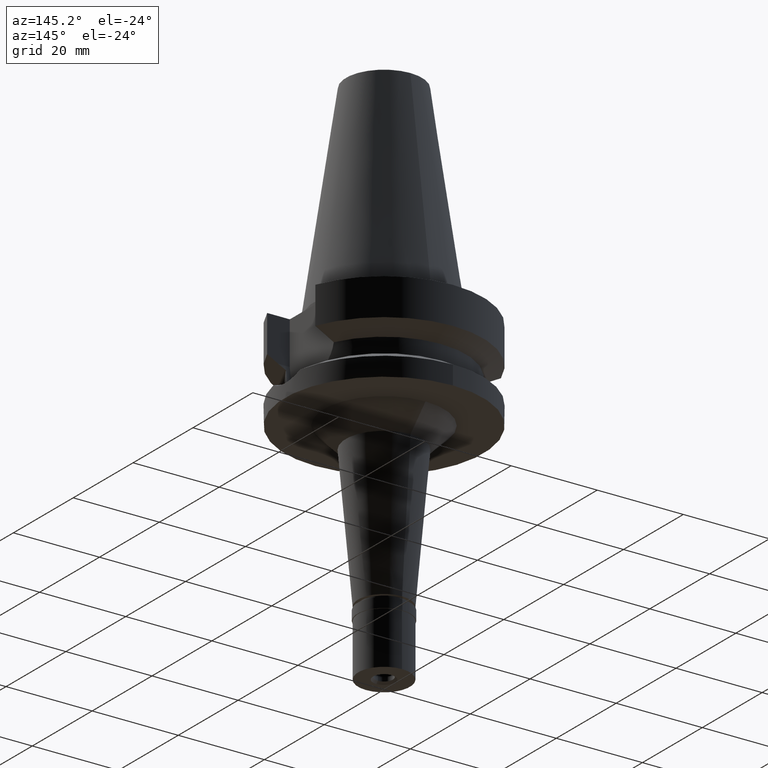
[diagram: clean part render]
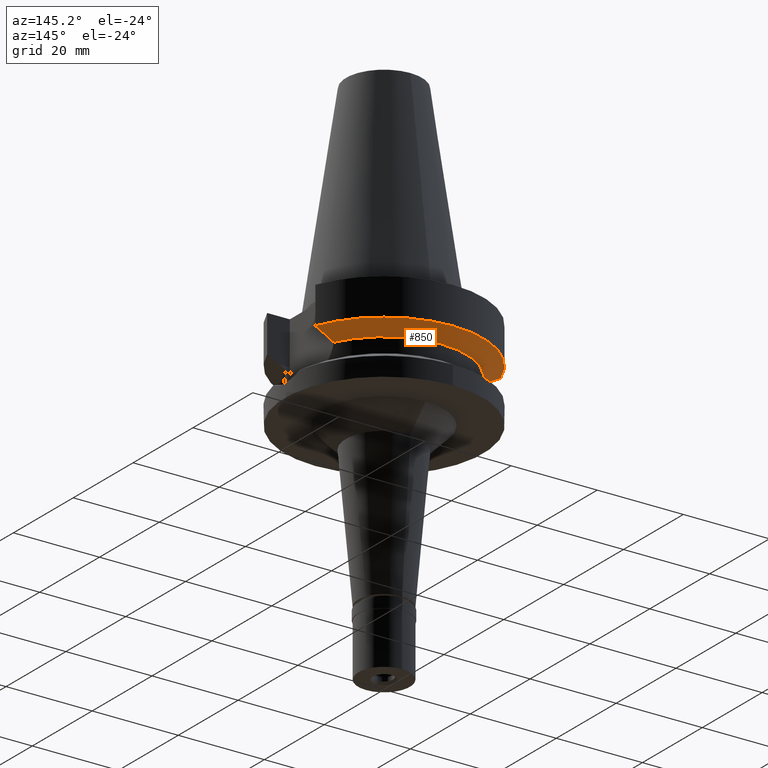
[diagram: same view with one face highlighted and labeled with its STEP entity id]
A machine part, auxiliary view. The second image highlights one B-rep face of the part: STEP entity #850.
In plain terms, the highlighted conical surface has half-angle 60 deg.
Its self-contained STEP definition (entity closure, byte-faithful):
#8 = ORIENTED_EDGE ( 'NONE', *, *, #1220, .F. ) ;
#91 = EDGE_CURVE ( 'NONE', #1239, #1590, #1693, .T. ) ;
#104 = CARTESIAN_POINT ( 'NONE',  ( 0.0000000000000000000, 1.093341284896999988E-14, -9.567208369710998639 ) ) ;
#125 = EDGE_CURVE ( 'NONE', #1171, #1785, #2110, .T. ) ;
#183 = CARTESIAN_POINT ( 'NONE',  ( 0.0000000000000000000, 1.093341284896999988E-14, -11.87660944646999894 ) ) ;
#186 = AXIS2_PLACEMENT_3D ( 'NONE', #2467, #2894, #416 ) ;
#220 = ORIENTED_EDGE ( 'NONE', *, *, #1744, .T. ) ;
#261 = CARTESIAN_POINT ( 'NONE',  ( -18.96736186713000194, 8.050001278041001740, -10.94999977536999936 ) ) ;
#340 = CARTESIAN_POINT ( 'NONE',  ( 18.30334768190532557, 8.049999956193227391, -11.30291651679201870 ) ) ;
#360 = CARTESIAN_POINT ( 'NONE',  ( -19.78176599972490379, 8.050001300064970167, -10.51717224081961710 ) ) ;
#416 = DIRECTION ( 'NONE',  ( 0.0000000000000000000, 1.000000000000000000, 0.0000000000000000000 ) ) ;
#519 = CARTESIAN_POINT ( 'NONE',  ( 18.96738966530000070, 8.049994318182998043, -10.95000099923000114 ) ) ;
#567 = CARTESIAN_POINT ( 'NONE',  ( 18.96738966530000070, 8.049994318182998043, -10.95000099923000114 ) ) ;
#629 = DIRECTION ( 'NONE',  ( 0.0000000000000000000, 0.0000000000000000000, -1.000000000000000000 ) ) ;
#647 = EDGE_CURVE ( 'NONE', #1729, #1785, #1379, .T. ) ;
#659 = CARTESIAN_POINT ( 'NONE',  ( -18.30417674179421539, 8.050000009835176940, -11.30245975725131125 ) ) ;
#755 = ORIENTED_EDGE ( 'NONE', *, *, #2090, .F. ) ;
#850 = ADVANCED_FACE ( 'NONE', ( #2701 ), #1657, .T. ) ;
#936 = ORIENTED_EDGE ( 'NONE', *, *, #647, .F. ) ;
#938 = CARTESIAN_POINT ( 'NONE',  ( 20.64098922513855783, 8.049999155450747068, -10.05625859774404773 ) ) ;
#1035 = CARTESIAN_POINT ( 'NONE',  ( -17.23531135276000015, 7.996501749881999466, -11.87660739337000138 ) ) ;
#1074 = CARTESIAN_POINT ( 'NONE',  ( 17.23531622902000038, 7.996491146276001771, -11.87660607782000000 ) ) ;
#1171 = VERTEX_POINT ( 'NONE', #2041 ) ;
#1190 = VERTEX_POINT ( 'NONE', #1594 ) ;
#1202 = AXIS2_PLACEMENT_3D ( 'NONE', #183, #629, #2489 ) ;
#1220 = EDGE_CURVE ( 'NONE', #1171, #1190, #1455, .T. ) ;
#1236 = AXIS2_PLACEMENT_3D ( 'NONE', #104, #1906, #2815 ) ;
#1239 = VERTEX_POINT ( 'NONE', #1658 ) ;
#1379 = CIRCLE ( 'NONE', #1236, 23.00000000000000000 ) ;
#1455 = B_SPLINE_CURVE_WITH_KNOTS ( 'NONE', 3,
 ( #261, #659, #2807, #1035 ),
 .UNSPECIFIED., .F., .F.,
 ( 4, 4 ),
 ( 0.0000000000000000000, 1.000000000000000000 ),
 .UNSPECIFIED. ) ;
#1548 = ORIENTED_EDGE ( 'NONE', *, *, #125, .T. ) ;
#1590 = VERTEX_POINT ( 'NONE', #2829 ) ;
#1594 = CARTESIAN_POINT ( 'NONE',  ( -17.23531135276000015, 7.996501749881999466, -11.87660739337000138 ) ) ;
#1657 = CONICAL_SURFACE ( 'NONE', #186, 21.00000000000000000, 1.047197551196400456 ) ;
#1658 = CARTESIAN_POINT ( 'NONE',  ( 17.23531622902000038, 7.996491146276001771, -11.87660607782000000 ) ) ;
#1693 = B_SPLINE_CURVE_WITH_KNOTS ( 'NONE', 3,
 ( #1074, #1892, #340, #567 ),
 .UNSPECIFIED., .F., .F.,
 ( 4, 4 ),
 ( 0.0000000000000000000, 1.000000000000000000 ),
 .UNSPECIFIED. ) ;
#1695 = ORIENTED_EDGE ( 'NONE', *, *, #91, .F. ) ;
#1715 = CARTESIAN_POINT ( 'NONE',  ( -21.54524231189000005, 8.050002094537999753, -9.567194606710000215 ) ) ;
#1718 = B_SPLINE_CURVE_WITH_KNOTS ( 'NONE', 3,
 ( #2777, #938, #2296, #519 ),
 .UNSPECIFIED., .F., .F.,
 ( 4, 4 ),
 ( 0.0000000000000000000, 1.000000000000000000 ),
 .UNSPECIFIED. ) ;
#1729 = VERTEX_POINT ( 'NONE', #2282 ) ;
#1744 = EDGE_CURVE ( 'NONE', #1729, #1590, #1718, .T. ) ;
#1785 = VERTEX_POINT ( 'NONE', #2557 ) ;
#1823 = EDGE_LOOP ( 'NONE', ( #936, #220, #1695, #755, #8, #1548 ) ) ;
#1892 = CARTESIAN_POINT ( 'NONE',  ( 17.72598986981198976, 8.027133616248125492, -11.61218197823705545 ) ) ;
#1906 = DIRECTION ( 'NONE',  ( 0.0000000000000000000, 0.0000000000000000000, 1.000000000000000000 ) ) ;
#1946 = CARTESIAN_POINT ( 'NONE',  ( -20.64102060695731566, 8.050004185766365339, -10.05624058759409678 ) ) ;
#2041 = CARTESIAN_POINT ( 'NONE',  ( -18.96736186713000194, 8.050001278041001740, -10.94999977536999936 ) ) ;
#2090 = EDGE_CURVE ( 'NONE', #1190, #1239, #2120, .T. ) ;
#2110 = B_SPLINE_CURVE_WITH_KNOTS ( 'NONE', 3,
 ( #2411, #360, #1946, #1715 ),
 .UNSPECIFIED., .F., .F.,
 ( 4, 4 ),
 ( 0.0000000000000000000, 1.000000000000000000 ),
 .UNSPECIFIED. ) ;
#2120 = CIRCLE ( 'NONE', #1202, 19.00000000000000000 ) ;
#2282 = CARTESIAN_POINT ( 'NONE',  ( 21.54524325238000060, 8.049999577379001181, -9.567211146543000311 ) ) ;
#2296 = CARTESIAN_POINT ( 'NONE',  ( 19.78174442298432112, 8.049991903556993122, -10.51718567366341972 ) ) ;
#2411 = CARTESIAN_POINT ( 'NONE',  ( -18.96736186713000194, 8.050001278041001740, -10.94999977536999936 ) ) ;
#2467 = CARTESIAN_POINT ( 'NONE',  ( 0.0000000000000000000, 1.093341284896999988E-14, -10.72190890808999875 ) ) ;
#2489 = DIRECTION ( 'NONE',  ( 0.0000000000000000000, 1.000000000000000000, 0.0000000000000000000 ) ) ;
#2557 = CARTESIAN_POINT ( 'NONE',  ( -21.54524231189000005, 8.050002094537999753, -9.567194606710000215 ) ) ;
#2701 = FACE_OUTER_BOUND ( 'NONE', #1823, .T. ) ;
#2777 = CARTESIAN_POINT ( 'NONE',  ( 21.54524325238000060, 8.049999577379001181, -9.567211146543000311 ) ) ;
#2807 = CARTESIAN_POINT ( 'NONE',  ( -17.72682657033755049, 8.027186144752379349, -11.61172868883279641 ) ) ;
#2815 = DIRECTION ( 'NONE',  ( 0.0000000000000000000, 1.000000000000000000, 0.0000000000000000000 ) ) ;
#2829 = CARTESIAN_POINT ( 'NONE',  ( 18.96738966530000070, 8.049994318182998043, -10.95000099923000114 ) ) ;
#2894 = DIRECTION ( 'NONE',  ( 0.0000000000000000000, 0.0000000000000000000, 1.000000000000000000 ) ) ;